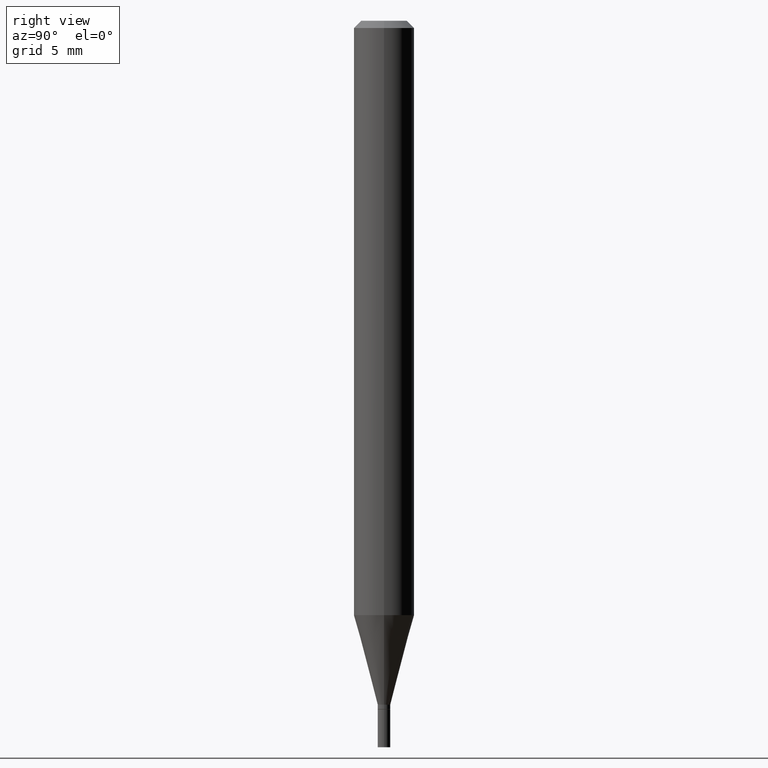
[diagram: clean part render]
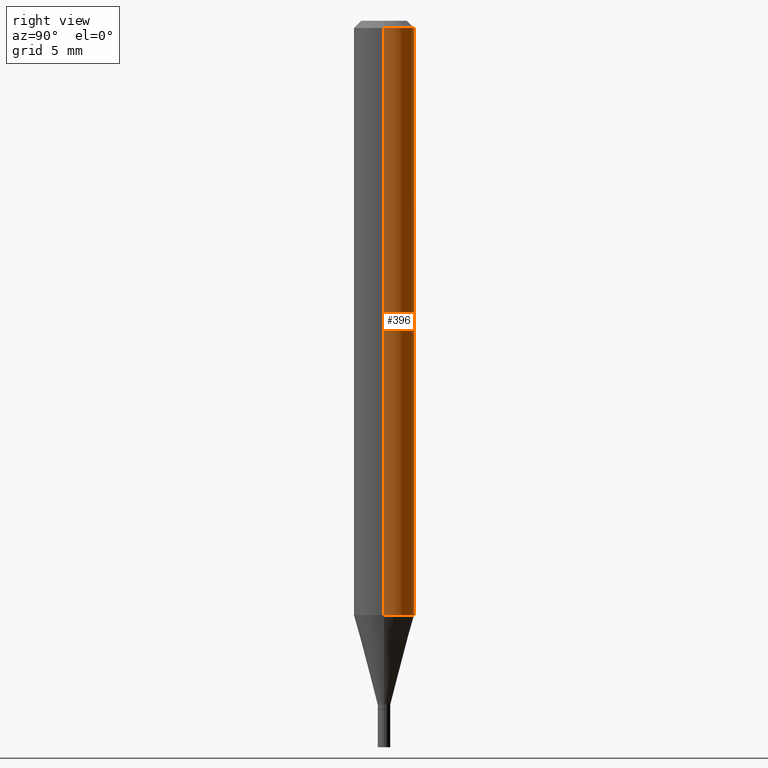
[diagram: same view with one face highlighted and labeled with its STEP entity id]
A machine part, right view. The second image highlights one B-rep face of the part: STEP entity #396.
In plain terms, the highlighted cylindrical surface (edge-blend (fillet) strip) has radius 1.5875 mm, axis along (-0, 0, 1).
Its self-contained STEP definition (entity closure, byte-faithful):
#14 = CIRCLE ( 'NONE', #438, 0.06250000000000000000 ) ;
#32 = CARTESIAN_POINT ( 'NONE',  ( 0.06250000000000000000, -4.888073874380388472E-16, -0.01499999999999999944 ) ) ;
#37 = LINE ( 'NONE', #387, #289 ) ;
#38 = AXIS2_PLACEMENT_3D ( 'NONE', #298, #450, #239 ) ;
#56 = LINE ( 'NONE', #198, #116 ) ;
#68 = EDGE_CURVE ( 'NONE', #118, #345, #208, .T. ) ;
#69 = DIRECTION ( 'NONE',  ( -2.445468806185136877E-29, 3.491481338843145188E-15, 1.000000000000000000 ) ) ;
#76 = EDGE_LOOP ( 'NONE', ( #170, #441, #356, #308 ) ) ;
#79 = CARTESIAN_POINT ( 'NONE',  ( -0.06249999999999999306, -3.840878345959517263E-15, -1.227263485025340550 ) ) ;
#83 = CARTESIAN_POINT ( 'NONE',  ( 3.668203209277705088E-31, -5.237222008264718399E-17, -0.01499999999999999944 ) ) ;
#85 = DIRECTION ( 'NONE',  ( -2.445468806185136597E-29, 3.491481338843145583E-15, 1.000000000000000000 ) ) ;
#100 = DIRECTION ( 'NONE',  ( 1.000000000000000000, -6.982962677686266711E-15, 0.000000000000000000 ) ) ;
#108 = CYLINDRICAL_SURFACE ( 'NONE', #38, 0.06250000000000000000 ) ;
#113 = CARTESIAN_POINT ( 'NONE',  ( 3.001234569599529890E-29, -4.284967555809580668E-15, -1.227263485025340550 ) ) ;
#116 = VECTOR ( 'NONE', #355, 39.37007874015748143 ) ;
#118 = VERTEX_POINT ( 'NONE', #287 ) ;
#138 = AXIS2_PLACEMENT_3D ( 'NONE', #113, #85, #444 ) ;
#168 = CARTESIAN_POINT ( 'NONE',  ( -0.06250000000000000000, -1.724580678096051257E-15, -0.01499999999999999944 ) ) ;
#170 = ORIENTED_EDGE ( 'NONE', *, *, #68, .T. ) ;
#172 = EDGE_CURVE ( 'NONE', #345, #390, #37, .T. ) ;
#174 = DIRECTION ( 'NONE',  ( -2.445468806185136597E-29, 3.491481338843145583E-15, 1.000000000000000000 ) ) ;
#198 = CARTESIAN_POINT ( 'NONE',  ( 0.06250000000000000000, -4.364351673553916694E-16, 3.047610484872459871E-30 ) ) ;
#208 = CIRCLE ( 'NONE', #138, 0.06250000000000000000 ) ;
#221 = EDGE_CURVE ( 'NONE', #118, #366, #56, .T. ) ;
#239 = DIRECTION ( 'NONE',  ( 1.000000000000000000, -6.982962677686266711E-15, 4.876176775795935793E-29 ) ) ;
#287 = CARTESIAN_POINT ( 'NONE',  ( 0.06249999999999999306, -4.721402723164972337E-15, -1.227263485025340550 ) ) ;
#289 = VECTOR ( 'NONE', #69, 39.37007874015748143 ) ;
#298 = CARTESIAN_POINT ( 'NONE',  ( 0.000000000000000000, 0.000000000000000000, 0.000000000000000000 ) ) ;
#308 = ORIENTED_EDGE ( 'NONE', *, *, #221, .F. ) ;
#345 = VERTEX_POINT ( 'NONE', #79 ) ;
#355 = DIRECTION ( 'NONE',  ( -2.445468806185136877E-29, 3.491481338843145188E-15, 1.000000000000000000 ) ) ;
#356 = ORIENTED_EDGE ( 'NONE', *, *, #404, .F. ) ;
#366 = VERTEX_POINT ( 'NONE', #32 ) ;
#387 = CARTESIAN_POINT ( 'NONE',  ( -0.06250000000000000000, 4.440892098500626162E-16, -3.074334431409316114E-30 ) ) ;
#390 = VERTEX_POINT ( 'NONE', #168 ) ;
#396 = ADVANCED_FACE ( 'NONE', ( #432 ), #108, .T. ) ;
#404 = EDGE_CURVE ( 'NONE', #366, #390, #14, .T. ) ;
#432 = FACE_OUTER_BOUND ( 'NONE', #76, .T. ) ;
#438 = AXIS2_PLACEMENT_3D ( 'NONE', #83, #174, #100 ) ;
#441 = ORIENTED_EDGE ( 'NONE', *, *, #172, .T. ) ;
#444 = DIRECTION ( 'NONE',  ( 1.000000000000000000, -6.982962677686270655E-15, 0.000000000000000000 ) ) ;
#450 = DIRECTION ( 'NONE',  ( -2.445468806185136597E-29, 3.491481338843145583E-15, 1.000000000000000000 ) ) ;